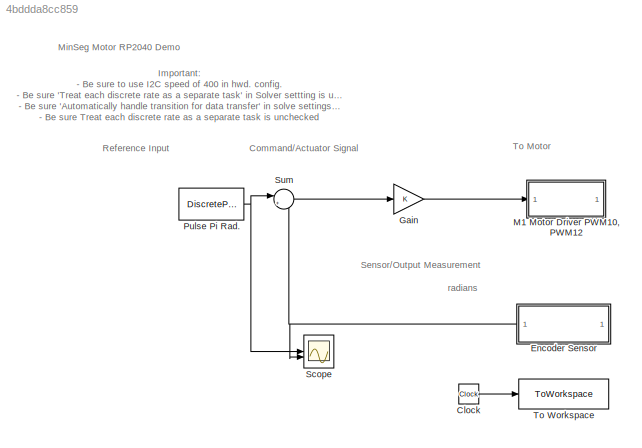
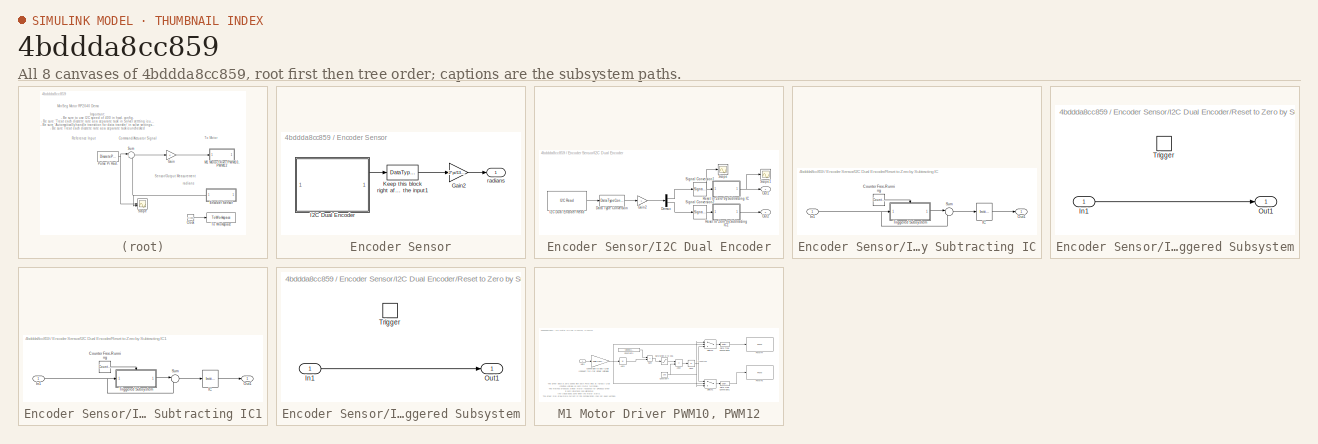
[diagram: thumbnail index - all 8 canvases of the model, root first then tree order]
MODEL slx_4bddda8cc859
KIND model
CONFIG AbsTol = auto
CONFIG EnableMultiTasking = on
CONFIG FixedStep = auto
CONFIG MaxStep = auto
CONFIG MinStep = auto
CONFIG RelTol = 1e-3
CONFIG SampleTimeConstraint = Unconstrained
CONFIG SolverName = ode45
CONFIG StartTime = 0.0
CONFIG StopTime = 10.0
BLOCK [Clock] Clock
BLOCK [SubSystem] Encoder Sensor
  NameLocation = top
BLOCK [Gain] Encoder Sensor/Gain2
  Gain = 2*pi/1336
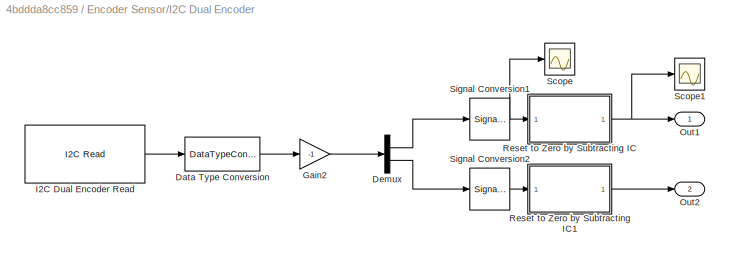
BLOCK [SubSystem] Encoder Sensor/I2C Dual Encoder
BLOCK [DataTypeConversion] Encoder Sensor/I2C Dual Encoder/Data Type Conversion
  OutDataTypeStr = double
  RndMeth = Floor
  SaturateOnIntegerOverflow = off
BLOCK [Demux] Encoder Sensor/I2C Dual Encoder/Demux
  Outputs = 2
BLOCK [Gain] Encoder Sensor/I2C Dual Encoder/Gain2
  Gain = -1
BLOCK [Reference] Encoder Sensor/I2C Dual Encoder/I2C Dual Encoder Read  REF=arduinolib/I2C Read
  SourceBlock = arduinolib/I2C Read
  SourceType = I2C Read
BLOCK [Outport] Encoder Sensor/I2C Dual Encoder/Out1
BLOCK [Outport] Encoder Sensor/I2C Dual Encoder/Out2
  Port = 2
BLOCK [SubSystem] Encoder Sensor/I2C Dual Encoder/Reset to Zero by Subtracting IC
BLOCK [Reference] Encoder Sensor/I2C Dual Encoder/Reset to Zero by Subtracting IC/Counter Free-Running  REF=simulink/Sources/Counter
Free-Running
  SourceBlock = simulink/Sources/Counter\nFree-Running
  SourceType = Counter Free-Running
BLOCK [InitialCondition] Encoder Sensor/I2C Dual Encoder/Reset to Zero by Subtracting IC/IC
  Value = 0
BLOCK [Inport] Encoder Sensor/I2C Dual Encoder/Reset to Zero by Subtracting IC/In1
BLOCK [Outport] Encoder Sensor/I2C Dual Encoder/Reset to Zero by Subtracting IC/Out1
BLOCK [Sum] Encoder Sensor/I2C Dual Encoder/Reset to Zero by Subtracting IC/Sum
  Inputs = |-+
BLOCK [SubSystem] Encoder Sensor/I2C Dual Encoder/Reset to Zero by Subtracting IC/Triggered Subsystem
  TreatAsAtomicUnit = on
BLOCK [Inport] Encoder Sensor/I2C Dual Encoder/Reset to Zero by Subtracting IC/Triggered Subsystem/In1
BLOCK [Outport] Encoder Sensor/I2C Dual Encoder/Reset to Zero by Subtracting IC/Triggered Subsystem/Out1
BLOCK [TriggerPort] Encoder Sensor/I2C Dual Encoder/Reset to Zero by Subtracting IC/Triggered Subsystem/Trigger
  StatesWhenEnabling = held
  VariantControl = (inherit)
BLOCK [SubSystem] Encoder Sensor/I2C Dual Encoder/Reset to Zero by Subtracting IC1
BLOCK [Reference] Encoder Sensor/I2C Dual Encoder/Reset to Zero by Subtracting IC1/Counter Free-Running  REF=simulink/Sources/Counter
Free-Running
  SourceBlock = simulink/Sources/Counter\nFree-Running
  SourceType = Counter Free-Running
BLOCK [InitialCondition] Encoder Sensor/I2C Dual Encoder/Reset to Zero by Subtracting IC1/IC
  Value = 0
BLOCK [Inport] Encoder Sensor/I2C Dual Encoder/Reset to Zero by Subtracting IC1/In1
BLOCK [Outport] Encoder Sensor/I2C Dual Encoder/Reset to Zero by Subtracting IC1/Out1
BLOCK [Sum] Encoder Sensor/I2C Dual Encoder/Reset to Zero by Subtracting IC1/Sum
  Inputs = |-+
BLOCK [SubSystem] Encoder Sensor/I2C Dual Encoder/Reset to Zero by Subtracting IC1/Triggered Subsystem
  TreatAsAtomicUnit = on
BLOCK [Inport] Encoder Sensor/I2C Dual Encoder/Reset to Zero by Subtracting IC1/Triggered Subsystem/In1
BLOCK [Outport] Encoder Sensor/I2C Dual Encoder/Reset to Zero by Subtracting IC1/Triggered Subsystem/Out1
BLOCK [TriggerPort] Encoder Sensor/I2C Dual Encoder/Reset to Zero by Subtracting IC1/Triggered Subsystem/Trigger
  StatesWhenEnabling = held
  VariantControl = (inherit)
BLOCK [Scope] Encoder Sensor/I2C Dual Encoder/Scope
  ActiveDisplayYMaximum = -4.4059855E+6
  ActiveDisplayYMinimum = -4.5575305E+6
  DataLoggingVariableName = ScopeData1
  Floating = off
  GraphicalSettings = {"GraphicalSettings":{"LegacySettings":true,"Style":{"Style":{"AxesColor":"[0 0 0]","ChannelNames":[""],"ColorOrder":"[1 0.909803921568627 0.392156862745098;0.149019607843137 0.549019607843137 0.866666666666667;0.96078431372549 0.466666666666667 0.16078431372549;0.286274509803922 0.858823529411765 0.250980392156863;0.752941176470588 0.36078431372549 0.984313725490196;0.423529411764706 0.9568627450...<+476ch>
  MultipleDisplayCache = [{"MaxYLimMag":4.5575305E+6,"MaxYLimReal":-4.4059855E+6,"MinYLimMag":0,"MinYLimReal":-4.5575305E+6,"PlotAsMagnitudePhase":false,"ShowGrid":true,"ShowLegend":false,"Title":"%<SignalLabel>","YLabel":""}]
  NumInputPorts = 1
  WasSavedAsWebScope = on
BLOCK [Scope] Encoder Sensor/I2C Dual Encoder/Scope1
  ActiveDisplayYMaximum = 136389.375
  ActiveDisplayYMinimum = -15154.375
  DataLoggingVariableName = ScopeData2
  Floating = off
  GraphicalSettings = {"GraphicalSettings":{"LegacySettings":true,"Style":{"Style":{"AxesColor":"[0 0 0]","ChannelNames":[""],"ColorOrder":"[1 0.909803921568627 0.392156862745098;0.149019607843137 0.549019607843137 0.866666666666667;0.96078431372549 0.466666666666667 0.16078431372549;0.286274509803922 0.858823529411765 0.250980392156863;0.752941176470588 0.36078431372549 0.984313725490196;0.423529411764706 0.9568627450...<+476ch>
  MultipleDisplayCache = [{"MaxYLimMag":136389.375,"MaxYLimReal":136389.375,"MinYLimMag":0,"MinYLimReal":-15154.375,"PlotAsMagnitudePhase":false,"ShowGrid":true,"ShowLegend":false,"Title":"%<SignalLabel>","YLabel":""}]
  NumInputPorts = 1
  WasSavedAsWebScope = on
BLOCK [SignalConversion] Encoder Sensor/I2C Dual Encoder/Signal Conversion1
  OverrideOpt = off
BLOCK [SignalConversion] Encoder Sensor/I2C Dual Encoder/Signal Conversion2
  OverrideOpt = off
BLOCK [DataTypeConversion] Encoder Sensor/Keep this block right after the input1
  OutDataTypeStr = double
  RndMeth = Floor
  SaturateOnIntegerOverflow = off
BLOCK [Outport] Encoder Sensor/radians
BLOCK [Gain] Gain
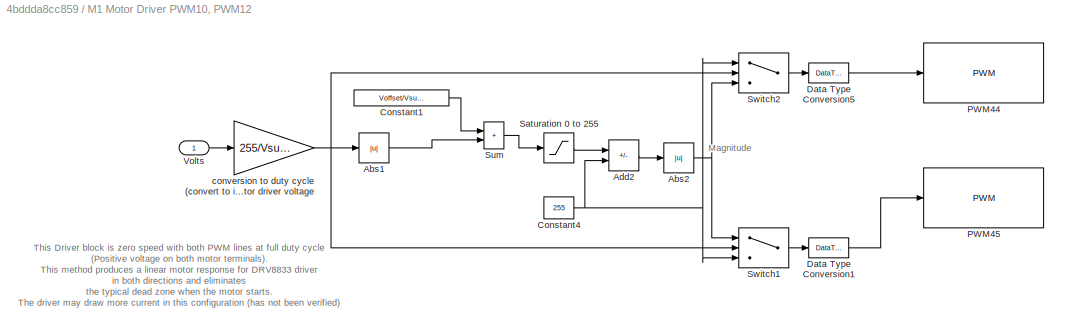
BLOCK [SubSystem] M1 Motor Driver PWM10, PWM12
BLOCK [Abs] M1 Motor Driver PWM10, PWM12/Abs1
  SaturateOnIntegerOverflow = off
BLOCK [Abs] M1 Motor Driver PWM10, PWM12/Abs2
  SaturateOnIntegerOverflow = off
BLOCK [Sum] M1 Motor Driver PWM10, PWM12/Add2
  IconShape = rectangular
  Inputs = -+
BLOCK [Constant] M1 Motor Driver PWM10, PWM12/Constant1
  Value = Voffset/Vsupply*255
BLOCK [Constant] M1 Motor Driver PWM10, PWM12/Constant4
  Value = 255
BLOCK [DataTypeConversion] M1 Motor Driver PWM10, PWM12/Data Type Conversion1
  OutDataTypeStr = uint8
  RndMeth = Floor
  SaturateOnIntegerOverflow = off
BLOCK [DataTypeConversion] M1 Motor Driver PWM10, PWM12/Data Type Conversion5
  OutDataTypeStr = uint8
  RndMeth = Floor
  SaturateOnIntegerOverflow = off
BLOCK [Reference] M1 Motor Driver PWM10, PWM12/PWM44  REF=arduinolib/PWM
  SourceBlock = arduinolib/PWM
  SourceType = Arduino PWM
BLOCK [Reference] M1 Motor Driver PWM10, PWM12/PWM45  REF=arduinolib/PWM
  SourceBlock = arduinolib/PWM
  SourceType = Arduino PWM
BLOCK [Saturate] M1 Motor Driver PWM10, PWM12/Saturation 0 to 255
  LowerLimit = 0
  UpperLimit = 255
BLOCK [Sum] M1 Motor Driver PWM10, PWM12/Sum
  IconShape = rectangular
BLOCK [Switch] M1 Motor Driver PWM10, PWM12/Switch1
  InputSameDT = off
  SaturateOnIntegerOverflow = off
BLOCK [Switch] M1 Motor Driver PWM10, PWM12/Switch2
  InputSameDT = off
  SaturateOnIntegerOverflow = off
BLOCK [Inport] M1 Motor Driver PWM10, PWM12/Volts
BLOCK [Gain] M1 Motor Driver PWM10, PWM12/conversion to duty cycle (convert to int) denominator is motor driver voltage
  Gain = 255/Vsupply
  OutDataTypeStr = int16
BLOCK [DiscretePulseGenerator] Pulse Pi Rad.
  Amplitude = pi
  Period = 4
  PulseType = Time based
  PulseWidth = 50
BLOCK [Scope] Scope
  ActiveDisplayYMaximum = 1
  ActiveDisplayYMinimum = -1
  Floating = off
  GraphicalSettings = {"Style":{"BackgroundColor":[0.12941176470588237,0.12941176470588237,0.12941176470588237],"AxesColor":[0.07058823529411765,0.07058823529411765,0.07058823529411765],"LabelsColor":[0.8509803921568627,0.8509803921568627,0.8509803921568627],"PreserveColors":false,"Visible":[true,true],"LineStyle":["-","-"],"LineWidth":[1.5,1.5],"BarWidth":[0.9,0.9],"LineColor":["auto","auto"],"LineFaceAlpha":[1,1],"Li...<+2141ch>
  MultipleDisplayCache = [{"MaxYLimMag":1,"MaxYLimReal":1,"MinYLimMag":0,"MinYLimReal":-1,"PlotAsMagnitudePhase":false,"ShowGrid":true,"ShowLegend":false,"Title":"%<SignalLabel>","YLabel":""}]
  NumInputPorts = 2
  ScopeFrameLocation = window
  Visible = on
  WasSavedAsWebScope = on
  WindowPosition = [1693.000000,434.000000,609.000000,843.000000,]
BLOCK [Sum] Sum
  Inputs = |+-
BLOCK [ToWorkspace] To Workspace
  FixptAsFi = on
  MaxDataPoints = inf
  SampleTime = -1
  Save2DSignal = 2-D array (concatenate along first dimension)
  VariableName = t
ANNOTATION (root): Important: - Be sure to use I2C speed of 400 in hwd. config. - Be sure 'Treat each discrete rate as a separate task' in Solver settting is unchecked - Be sure 'Automatically handle transition for data transfer' in solve settings is unchecked - Be sure Treat each discrete rate as a separate task is unchecked
ANNOTATION (root): Command/Actuator Signal
ANNOTATION (root): Reference Input
ANNOTATION (root): Sensor/Output Measurement
ANNOTATION (root): To Motor
ANNOTATION (root): MinSeg Motor RP2040 Demo
ANNOTATION (root): radians
ANNOTATION M1 Motor Driver PWM10, PWM12: Magnitude
ANNOTATION M1 Motor Driver PWM10, PWM12: This Driver block is zero speed with both PWM lines at full duty cycle (Positive voltage on both motor terminals). This method produces a linear motor response for DRV8833 driver in both directions and eliminates the typical dead zone when the motor starts. The driver may draw more current in this configuration (has not been verified) The SN754410 driver this has no effect, so the driver could alt...<+76ch>
LINE Clock:1 -> To Workspace:1
LINE Encoder Sensor/Gain2:1 -> Encoder Sensor/radians:1
LINE Encoder Sensor/I2C Dual Encoder/Data Type Conversion:1 -> Encoder Sensor/I2C Dual Encoder/Gain2:1
LINE Encoder Sensor/I2C Dual Encoder/Demux:1 -> Encoder Sensor/I2C Dual Encoder/Signal Conversion1:1
LINE Encoder Sensor/I2C Dual Encoder/Demux:2 -> Encoder Sensor/I2C Dual Encoder/Signal Conversion2:1
LINE Encoder Sensor/I2C Dual Encoder/Gain2:1 -> Encoder Sensor/I2C Dual Encoder/Demux:1
LINE Encoder Sensor/I2C Dual Encoder/I2C Dual Encoder Read:1 -> Encoder Sensor/I2C Dual Encoder/Data Type Conversion:1
LINE Encoder Sensor/I2C Dual Encoder/Reset to Zero by Subtracting IC/Counter Free-Running:1 -> Encoder Sensor/I2C Dual Encoder/Reset to Zero by Subtracting IC/Triggered Subsystem:trigger
LINE Encoder Sensor/I2C Dual Encoder/Reset to Zero by Subtracting IC/IC:1 -> Encoder Sensor/I2C Dual Encoder/Reset to Zero by Subtracting IC/Out1:1
NET Encoder Sensor/I2C Dual Encoder/Reset to Zero by Subtracting IC/In1:1 -> Encoder Sensor/I2C Dual Encoder/Reset to Zero by Subtracting IC/Sum:2, Encoder Sensor/I2C Dual Encoder/Reset to Zero by Subtracting IC/Triggered Subsystem:1
LINE Encoder Sensor/I2C Dual Encoder/Reset to Zero by Subtracting IC/Sum:1 -> Encoder Sensor/I2C Dual Encoder/Reset to Zero by Subtracting IC/IC:1
LINE Encoder Sensor/I2C Dual Encoder/Reset to Zero by Subtracting IC/Triggered Subsystem/In1:1 -> Encoder Sensor/I2C Dual Encoder/Reset to Zero by Subtracting IC/Triggered Subsystem/Out1:1
LINE Encoder Sensor/I2C Dual Encoder/Reset to Zero by Subtracting IC/Triggered Subsystem:1 -> Encoder Sensor/I2C Dual Encoder/Reset to Zero by Subtracting IC/Sum:1
LINE Encoder Sensor/I2C Dual Encoder/Reset to Zero by Subtracting IC1/Counter Free-Running:1 -> Encoder Sensor/I2C Dual Encoder/Reset to Zero by Subtracting IC1/Triggered Subsystem:trigger
LINE Encoder Sensor/I2C Dual Encoder/Reset to Zero by Subtracting IC1/IC:1 -> Encoder Sensor/I2C Dual Encoder/Reset to Zero by Subtracting IC1/Out1:1
NET Encoder Sensor/I2C Dual Encoder/Reset to Zero by Subtracting IC1/In1:1 -> Encoder Sensor/I2C Dual Encoder/Reset to Zero by Subtracting IC1/Sum:2, Encoder Sensor/I2C Dual Encoder/Reset to Zero by Subtracting IC1/Triggered Subsystem:1
LINE Encoder Sensor/I2C Dual Encoder/Reset to Zero by Subtracting IC1/Sum:1 -> Encoder Sensor/I2C Dual Encoder/Reset to Zero by Subtracting IC1/IC:1
LINE Encoder Sensor/I2C Dual Encoder/Reset to Zero by Subtracting IC1/Triggered Subsystem/In1:1 -> Encoder Sensor/I2C Dual Encoder/Reset to Zero by Subtracting IC1/Triggered Subsystem/Out1:1
LINE Encoder Sensor/I2C Dual Encoder/Reset to Zero by Subtracting IC1/Triggered Subsystem:1 -> Encoder Sensor/I2C Dual Encoder/Reset to Zero by Subtracting IC1/Sum:1
LINE Encoder Sensor/I2C Dual Encoder/Reset to Zero by Subtracting IC1:1 -> Encoder Sensor/I2C Dual Encoder/Out2:1
NET Encoder Sensor/I2C Dual Encoder/Reset to Zero by Subtracting IC:1 -> Encoder Sensor/I2C Dual Encoder/Out1:1, Encoder Sensor/I2C Dual Encoder/Scope1:1
NET Encoder Sensor/I2C Dual Encoder/Signal Conversion1:1 -> Encoder Sensor/I2C Dual Encoder/Reset to Zero by Subtracting IC:1, Encoder Sensor/I2C Dual Encoder/Scope:1
LINE Encoder Sensor/I2C Dual Encoder/Signal Conversion2:1 -> Encoder Sensor/I2C Dual Encoder/Reset to Zero by Subtracting IC1:1
LINE Encoder Sensor/I2C Dual Encoder:1 -> Encoder Sensor/Keep this block right after the input1:1
LINE Encoder Sensor/Keep this block right after the input1:1 -> Encoder Sensor/Gain2:1
NET Encoder Sensor:1 -> Scope:2, Sum:2
LINE Gain:1 -> M1 Motor Driver PWM10, PWM12:1
LINE M1 Motor Driver PWM10, PWM12/Abs1:1 -> M1 Motor Driver PWM10, PWM12/Sum:2
NET M1 Motor Driver PWM10, PWM12/Abs2:1 -> M1 Motor Driver PWM10, PWM12/Switch1:1, M1 Motor Driver PWM10, PWM12/Switch2:3
LINE M1 Motor Driver PWM10, PWM12/Add2:1 -> M1 Motor Driver PWM10, PWM12/Abs2:1
LINE M1 Motor Driver PWM10, PWM12/Constant1:1 -> M1 Motor Driver PWM10, PWM12/Sum:1
NET M1 Motor Driver PWM10, PWM12/Constant4:1 -> M1 Motor Driver PWM10, PWM12/Add2:2, M1 Motor Driver PWM10, PWM12/Switch1:3, M1 Motor Driver PWM10, PWM12/Switch2:1
LINE M1 Motor Driver PWM10, PWM12/Data Type Conversion1:1 -> M1 Motor Driver PWM10, PWM12/PWM45:1
LINE M1 Motor Driver PWM10, PWM12/Data Type Conversion5:1 -> M1 Motor Driver PWM10, PWM12/PWM44:1
LINE M1 Motor Driver PWM10, PWM12/Saturation 0 to 255:1 -> M1 Motor Driver PWM10, PWM12/Add2:1
LINE M1 Motor Driver PWM10, PWM12/Sum:1 -> M1 Motor Driver PWM10, PWM12/Saturation 0 to 255:1
LINE M1 Motor Driver PWM10, PWM12/Switch1:1 -> M1 Motor Driver PWM10, PWM12/Data Type Conversion1:1
LINE M1 Motor Driver PWM10, PWM12/Switch2:1 -> M1 Motor Driver PWM10, PWM12/Data Type Conversion5:1
LINE M1 Motor Driver PWM10, PWM12/Volts:1 -> M1 Motor Driver PWM10, PWM12/conversion to duty cycle (convert to int) denominator is motor driver voltage:1
NET M1 Motor Driver PWM10, PWM12/conversion to duty cycle (convert to int) denominator is motor driver voltage:1 -> M1 Motor Driver PWM10, PWM12/Abs1:1, M1 Motor Driver PWM10, PWM12/Switch1:2, M1 Motor Driver PWM10, PWM12/Switch2:2
NET Pulse Pi Rad.:1 -> Scope:1, Sum:1
LINE Sum:1 -> Gain:1
note: NET lines group one-source signal fan-out (src -> all destinations, sorted); 1:1 wires keep LINE
